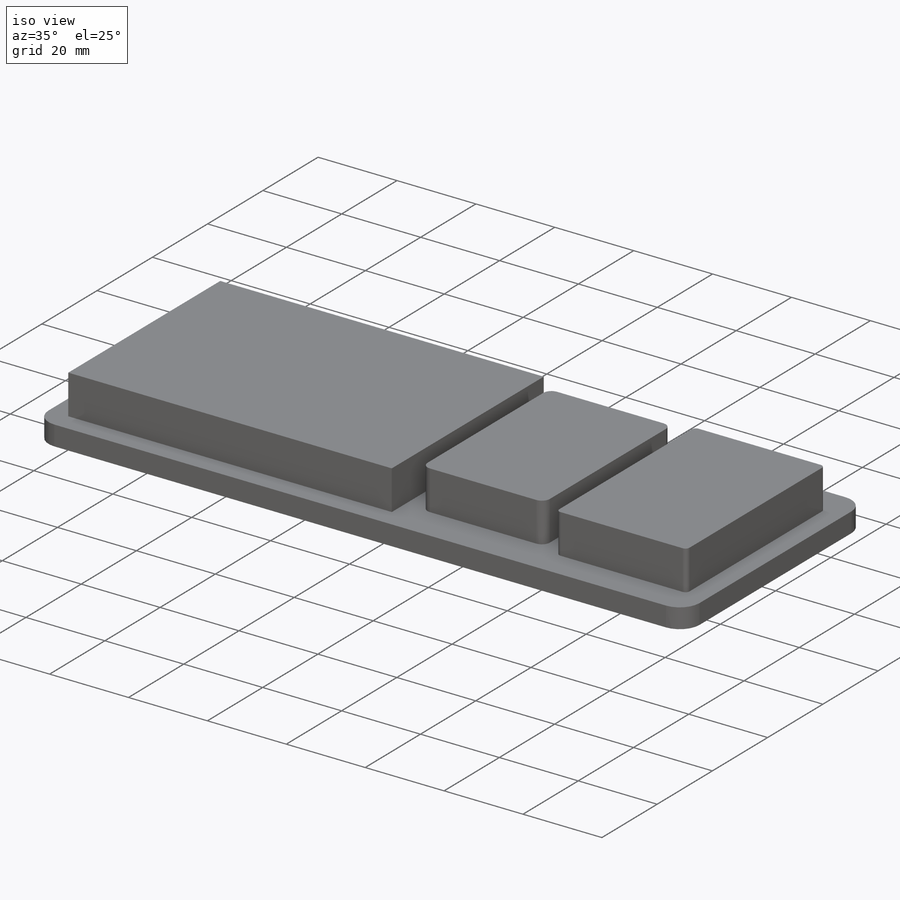
[diagram: iso view]
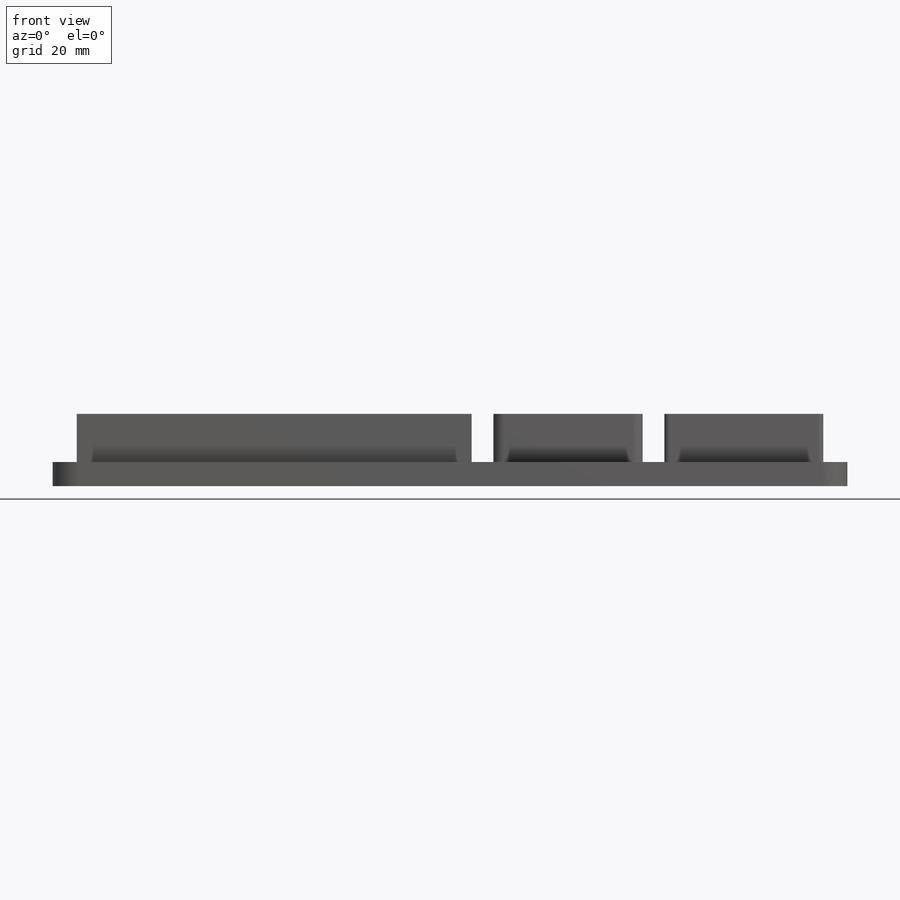
[diagram: front view]
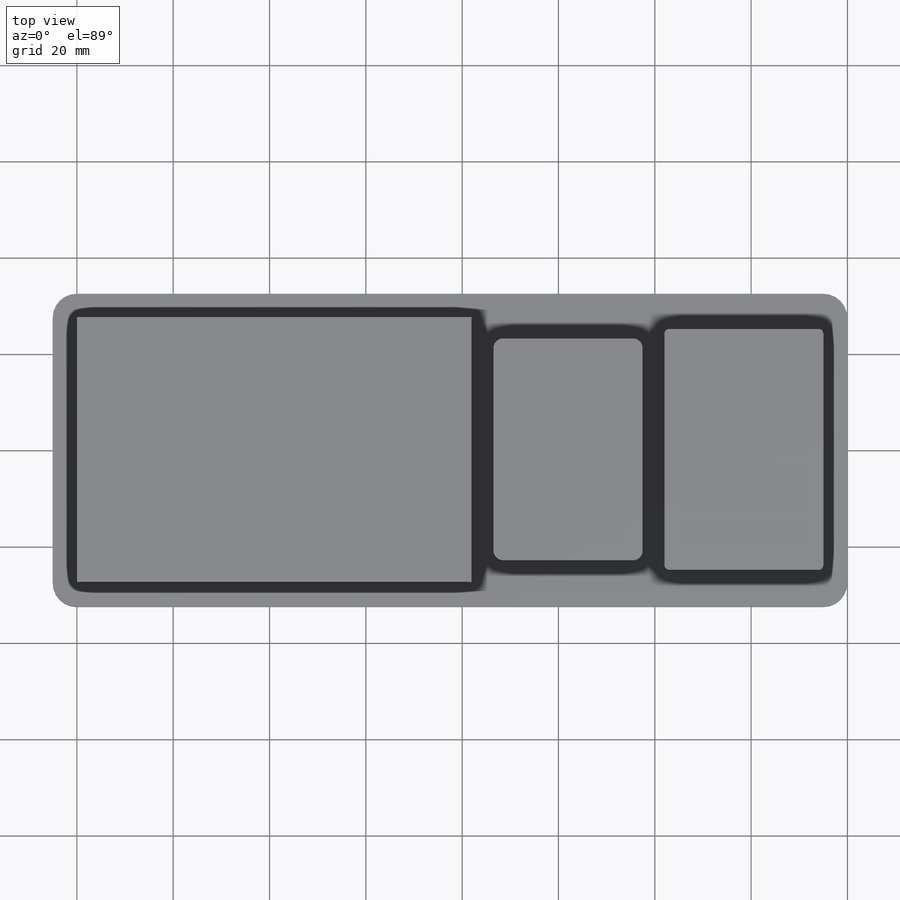
[diagram: top view]
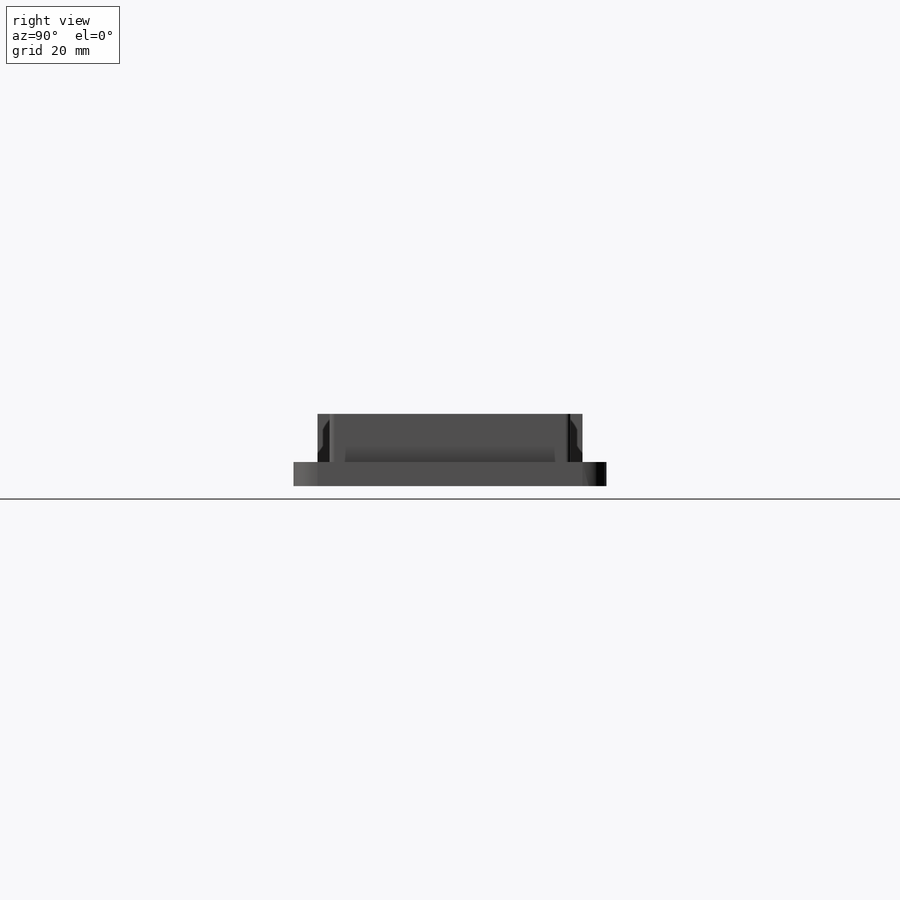
[diagram: right view]
SOLIDWORKS PART (.sldprt)
format: sldprt  version: not decoded by parser v0  size: 212,992 bytes
history: native  units: mm
features: fillet x3, sketch x2, extrude x2, material x1 (+11 scaffold rows collapsed)
feature tree (19):
  scaffold x11  (default folders/planes/origin — collapsed)
  material  "Material <not specified>"
  sketch  "Sketch1"  dims[c1.D1=55.0mm c1.D2=83.0mm c1.D3=31.0mm c1.D4=46.0mm c1.D5=50.0mm c1.D6=33.0mm c1.D7=5.0mm c1.D8=5.0mm c1.D9=27.5mm c1.D10=~27.545627mm c2.D9=~4.262743mm c2.D10=23.0mm c2.D11=25.0mm c3.D9=27.5mm c3.D12=65.0mm c3.D13=32.5mm c3.D14=165.0mm]
  extrude  "Boss-Extrude1"  Depth=5mm
  fillet  "Fillet1"  Radius=5mm
  sketch  "Sketch2"  dims[D1=31.0mm D2=46.0mm D3=50.0mm D4=55.0mm D5=82.0mm D6=5.0mm D7=5.0mm D8=5.0mm D9=25.0mm D10=23.0mm D11=4.5mm D12=4.5mm]
  extrude  "Boss-Extrude2"  Depth=10mm
  fillet  "Fillet2"  Radius=2mm
  fillet  "Fillet3"  Radius=1mm
decode coverage: 7 of 7 modeling features carry decoded parameters
note: ~ marks probable driven/reference dimensions
note: suppression state not decoded; provenance and decode notes live in map.json
